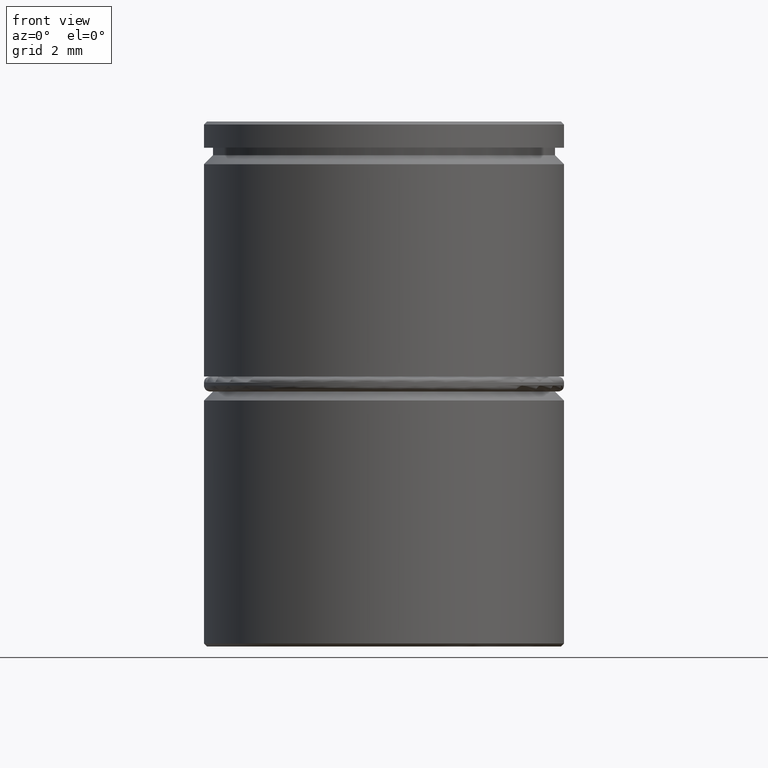
[diagram: clean part render]
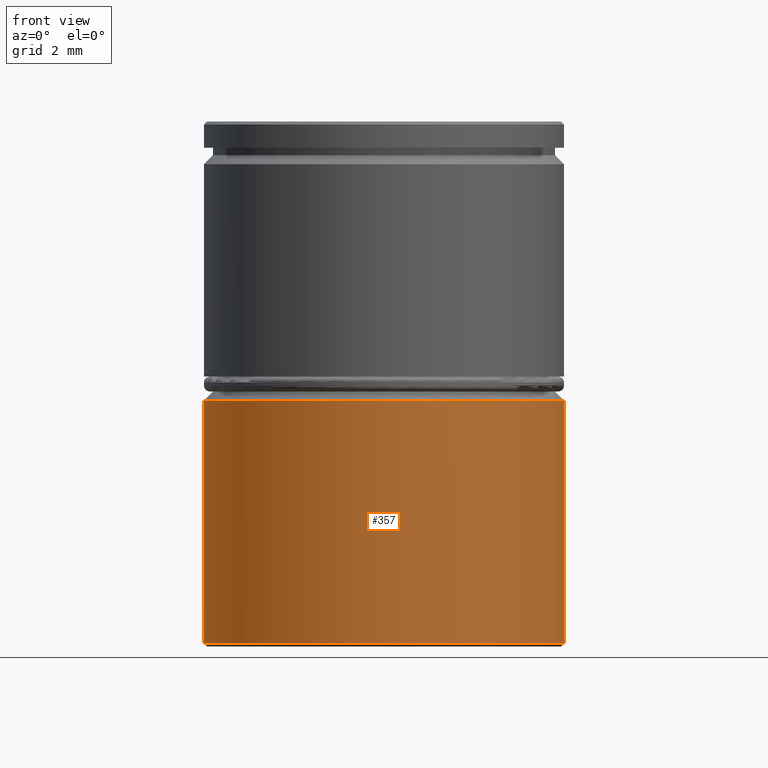
[diagram: same view with one face highlighted and labeled with its STEP entity id]
A machine part, front view. The second image highlights one B-rep face of the part: STEP entity #357.
In plain terms, the highlighted cylindrical surface (partial cylindrical patch) has radius 6 mm, axis along (-0, -0, 1).
Its self-contained STEP definition (entity closure, byte-faithful):
#20 = ORIENTED_EDGE ( 'NONE', *, *, #322, .T. ) ;
#32 = VECTOR ( 'NONE', #573, 1000.000000000000000 ) ;
#34 = DIRECTION ( 'NONE',  ( -0.000000000000000000, -0.000000000000000000, 1.000000000000000000 ) ) ;
#74 = EDGE_CURVE ( 'NONE', #150, #371, #484, .T. ) ;
#94 = ORIENTED_EDGE ( 'NONE', *, *, #941, .T. ) ;
#127 = EDGE_CURVE ( 'NONE', #150, #727, #652, .T. ) ;
#150 = VERTEX_POINT ( 'NONE', #181 ) ;
#181 = CARTESIAN_POINT ( 'NONE',  ( -6.000000000000000000, 7.347880794884119736E-16, -17.40000000000000213 ) ) ;
#192 = DIRECTION ( 'NONE',  ( 1.000000000000000000, 0.000000000000000000, 0.000000000000000000 ) ) ;
#279 = FACE_OUTER_BOUND ( 'NONE', #519, .T. ) ;
#285 = CARTESIAN_POINT ( 'NONE',  ( 0.000000000000000000, 0.000000000000000000, 0.000000000000000000 ) ) ;
#293 = VECTOR ( 'NONE', #34, 1000.000000000000000 ) ;
#322 = EDGE_CURVE ( 'NONE', #691, #727, #538, .T. ) ;
#329 = DIRECTION ( 'NONE',  ( -1.000000000000000000, 0.000000000000000000, 0.000000000000000000 ) ) ;
#357 = ADVANCED_FACE ( 'NONE', ( #279 ), #587, .T. ) ;
#371 = VERTEX_POINT ( 'NONE', #525 ) ;
#386 = CARTESIAN_POINT ( 'NONE',  ( 0.000000000000000000, 0.000000000000000000, -17.40000000000000213 ) ) ;
#416 = CARTESIAN_POINT ( 'NONE',  ( 6.000000000000000000, 0.000000000000000000, -9.299999999999991829 ) ) ;
#449 = ORIENTED_EDGE ( 'NONE', *, *, #74, .T. ) ;
#484 = CIRCLE ( 'NONE', #1033, 6.000000000000000000 ) ;
#508 = AXIS2_PLACEMENT_3D ( 'NONE', #285, #659, #192 ) ;
#519 = EDGE_LOOP ( 'NONE', ( #702, #449, #94, #20 ) ) ;
#525 = CARTESIAN_POINT ( 'NONE',  ( 6.000000000000000000, 0.000000000000000000, -17.40000000000000213 ) ) ;
#538 = CIRCLE ( 'NONE', #628, 6.000000000000000000 ) ;
#553 = CARTESIAN_POINT ( 'NONE',  ( -6.000000000000000000, 7.347880794884119736E-16, -9.299999999999991829 ) ) ;
#567 = DIRECTION ( 'NONE',  ( 1.000000000000000000, 0.000000000000000000, 0.000000000000000000 ) ) ;
#573 = DIRECTION ( 'NONE',  ( -0.000000000000000000, -0.000000000000000000, 1.000000000000000000 ) ) ;
#587 = CYLINDRICAL_SURFACE ( 'NONE', #508, 6.000000000000000000 ) ;
#593 = LINE ( 'NONE', #974, #293 ) ;
#628 = AXIS2_PLACEMENT_3D ( 'NONE', #653, #645, #567 ) ;
#645 = DIRECTION ( 'NONE',  ( 0.000000000000000000, 0.000000000000000000, -1.000000000000000000 ) ) ;
#652 = LINE ( 'NONE', #969, #32 ) ;
#653 = CARTESIAN_POINT ( 'NONE',  ( 0.000000000000000000, 0.000000000000000000, -9.299999999999991829 ) ) ;
#659 = DIRECTION ( 'NONE',  ( -0.000000000000000000, -0.000000000000000000, 1.000000000000000000 ) ) ;
#691 = VERTEX_POINT ( 'NONE', #416 ) ;
#702 = ORIENTED_EDGE ( 'NONE', *, *, #127, .F. ) ;
#727 = VERTEX_POINT ( 'NONE', #553 ) ;
#941 = EDGE_CURVE ( 'NONE', #371, #691, #593, .T. ) ;
#969 = CARTESIAN_POINT ( 'NONE',  ( -6.000000000000000000, 7.347880794884119736E-16, 0.000000000000000000 ) ) ;
#974 = CARTESIAN_POINT ( 'NONE',  ( 6.000000000000000000, 0.000000000000000000, 0.000000000000000000 ) ) ;
#1011 = DIRECTION ( 'NONE',  ( -0.000000000000000000, -0.000000000000000000, 1.000000000000000000 ) ) ;
#1033 = AXIS2_PLACEMENT_3D ( 'NONE', #386, #1011, #329 ) ;